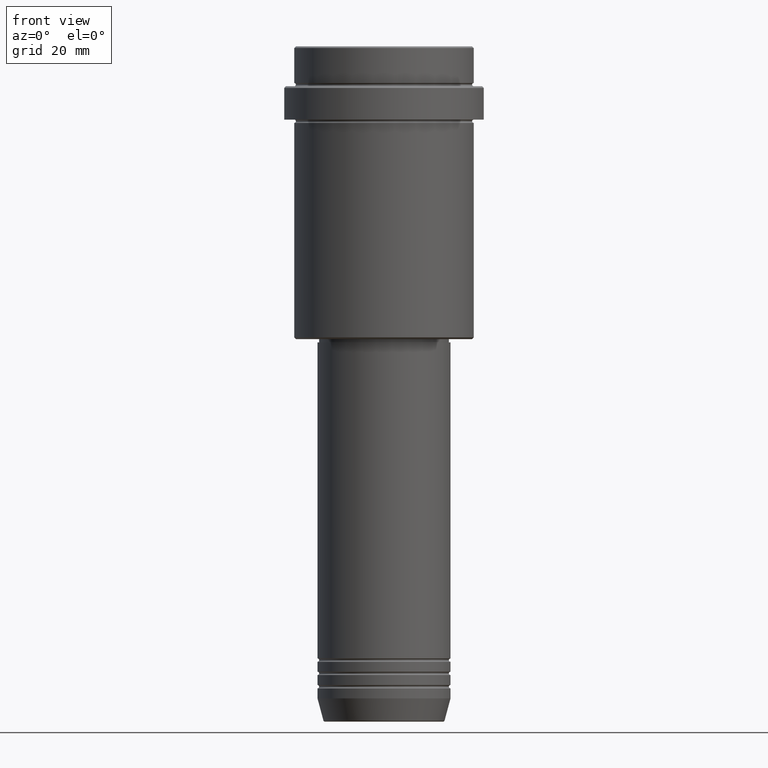
[diagram: clean part render]
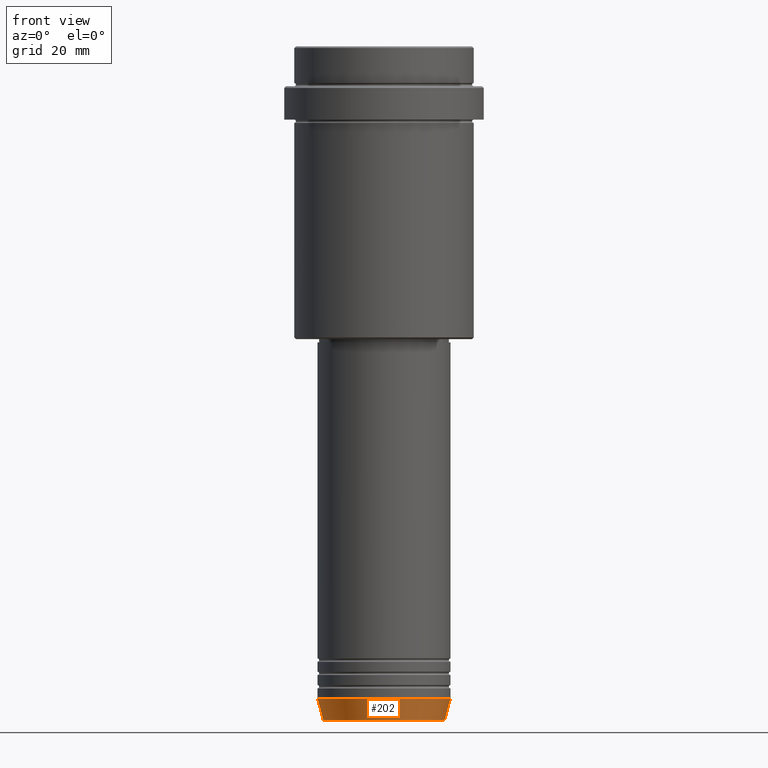
[diagram: same view with one face highlighted and labeled with its STEP entity id]
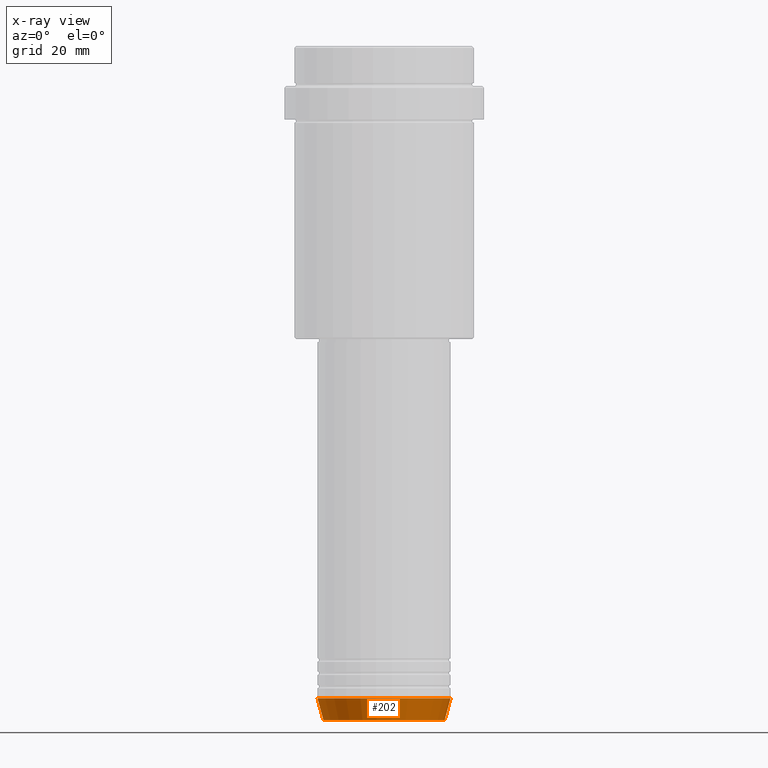
[diagram: x-ray of the same camera — body ghosted, the highlighted face saturated]
A machine part, front view. The second image highlights one B-rep face of the part: STEP entity #202.
The next image is the same camera in x-ray: the body ghosted, the highlighted face saturated — about 0% of this face is hidden behind the body in this view.
In plain terms, the highlighted conical surface has half-angle 15 deg.
Its self-contained STEP definition (entity closure, byte-faithful):
#8 = CIRCLE ( 'NONE', #772, 18.22365507213718416 ) ;
#13 = ORIENTED_EDGE ( 'NONE', *, *, #387, .T. ) ;
#40 = ORIENTED_EDGE ( 'NONE', *, *, #427, .F. ) ;
#41 = CARTESIAN_POINT ( 'NONE',  ( 18.22365507213718416, 0.000000000000000000, -202.6294095225512706 ) ) ;
#43 = EDGE_LOOP ( 'NONE', ( #1371, #876, #13, #40 ) ) ;
#158 = CARTESIAN_POINT ( 'NONE',  ( -18.22365507213718416, 2.340523841790264718E-15, -202.6294095225512706 ) ) ;
#190 = LINE ( 'NONE', #1076, #1331 ) ;
#198 = CARTESIAN_POINT ( 'NONE',  ( 20.00000000000000000, 0.000000000000000000, -196.0000000000000000 ) ) ;
#202 = ADVANCED_FACE ( 'NONE', ( #252 ), #1109, .T. ) ;
#249 = VERTEX_POINT ( 'NONE', #158 ) ;
#252 = FACE_OUTER_BOUND ( 'NONE', #43, .T. ) ;
#313 = DIRECTION ( 'NONE',  ( 0.2588190451025209060, 0.000000000000000000, 0.9659258262890682012 ) ) ;
#369 = VERTEX_POINT ( 'NONE', #198 ) ;
#373 = CIRCLE ( 'NONE', #466, 20.00000000000000000 ) ;
#385 = LINE ( 'NONE', #1236, #1400 ) ;
#387 = EDGE_CURVE ( 'NONE', #1160, #369, #190, .T. ) ;
#427 = EDGE_CURVE ( 'NONE', #1354, #369, #373, .T. ) ;
#466 = AXIS2_PLACEMENT_3D ( 'NONE', #1060, #962, #637 ) ;
#637 = DIRECTION ( 'NONE',  ( 1.000000000000000000, 0.000000000000000000, 0.000000000000000000 ) ) ;
#643 = EDGE_CURVE ( 'NONE', #249, #1354, #385, .T. ) ;
#669 = CARTESIAN_POINT ( 'NONE',  ( 0.000000000000000000, 0.000000000000000000, -202.6294095225512706 ) ) ;
#772 = AXIS2_PLACEMENT_3D ( 'NONE', #669, #1088, #1119 ) ;
#857 = AXIS2_PLACEMENT_3D ( 'NONE', #895, #1127, #1320 ) ;
#876 = ORIENTED_EDGE ( 'NONE', *, *, #953, .T. ) ;
#895 = CARTESIAN_POINT ( 'NONE',  ( 0.000000000000000000, 0.000000000000000000, -196.0000000000000000 ) ) ;
#934 = DIRECTION ( 'NONE',  ( -0.2588190451025209060, 3.169619151431766790E-17, 0.9659258262890682012 ) ) ;
#953 = EDGE_CURVE ( 'NONE', #249, #1160, #8, .T. ) ;
#962 = DIRECTION ( 'NONE',  ( -0.000000000000000000, -0.000000000000000000, 1.000000000000000000 ) ) ;
#1060 = CARTESIAN_POINT ( 'NONE',  ( 0.000000000000000000, 0.000000000000000000, -196.0000000000000000 ) ) ;
#1076 = CARTESIAN_POINT ( 'NONE',  ( 20.00000000000000000, 0.000000000000000000, -196.0000000000000000 ) ) ;
#1088 = DIRECTION ( 'NONE',  ( -0.000000000000000000, -0.000000000000000000, 1.000000000000000000 ) ) ;
#1109 = CONICAL_SURFACE ( 'NONE', #857, 20.00000000000000000, 0.2617993877991495744 ) ;
#1119 = DIRECTION ( 'NONE',  ( 1.000000000000000000, 0.000000000000000000, 0.000000000000000000 ) ) ;
#1127 = DIRECTION ( 'NONE',  ( -0.000000000000000000, -0.000000000000000000, 1.000000000000000000 ) ) ;
#1160 = VERTEX_POINT ( 'NONE', #41 ) ;
#1236 = CARTESIAN_POINT ( 'NONE',  ( -20.00000000000000000, 2.449293598294706513E-15, -196.0000000000000000 ) ) ;
#1285 = CARTESIAN_POINT ( 'NONE',  ( -20.00000000000000000, 2.449293598294706513E-15, -196.0000000000000000 ) ) ;
#1320 = DIRECTION ( 'NONE',  ( 1.000000000000000000, 0.000000000000000000, 0.000000000000000000 ) ) ;
#1331 = VECTOR ( 'NONE', #313, 1000.000000000000000 ) ;
#1354 = VERTEX_POINT ( 'NONE', #1285 ) ;
#1371 = ORIENTED_EDGE ( 'NONE', *, *, #643, .F. ) ;
#1400 = VECTOR ( 'NONE', #934, 1000.000000000000000 ) ;